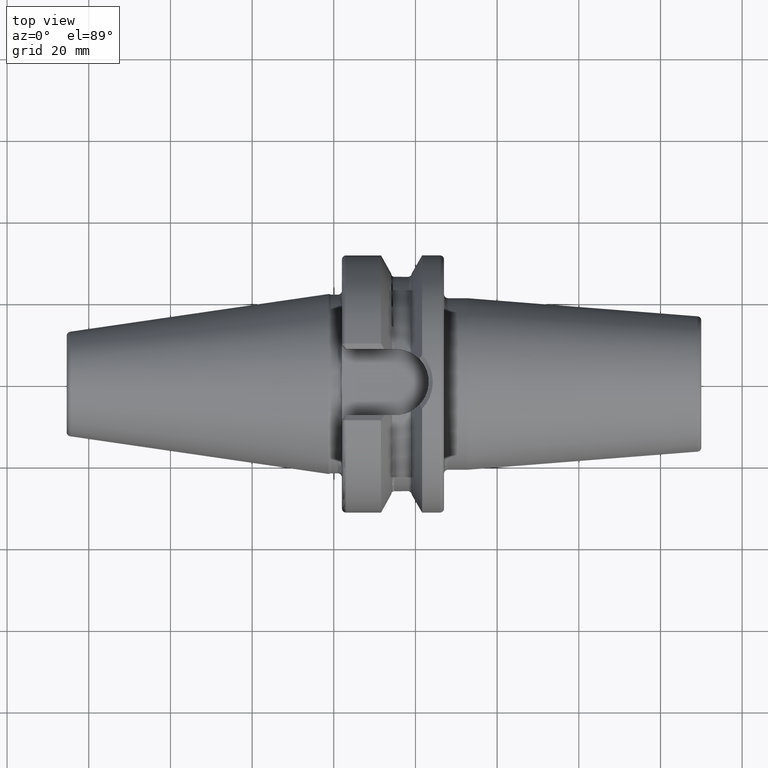
[diagram: clean part render]
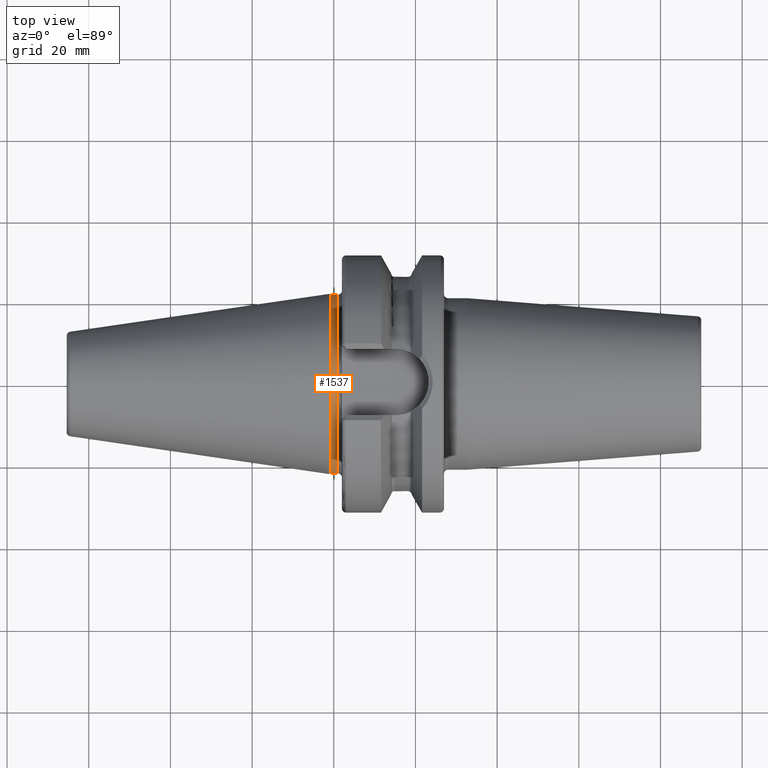
[diagram: same view with one face highlighted and labeled with its STEP entity id]
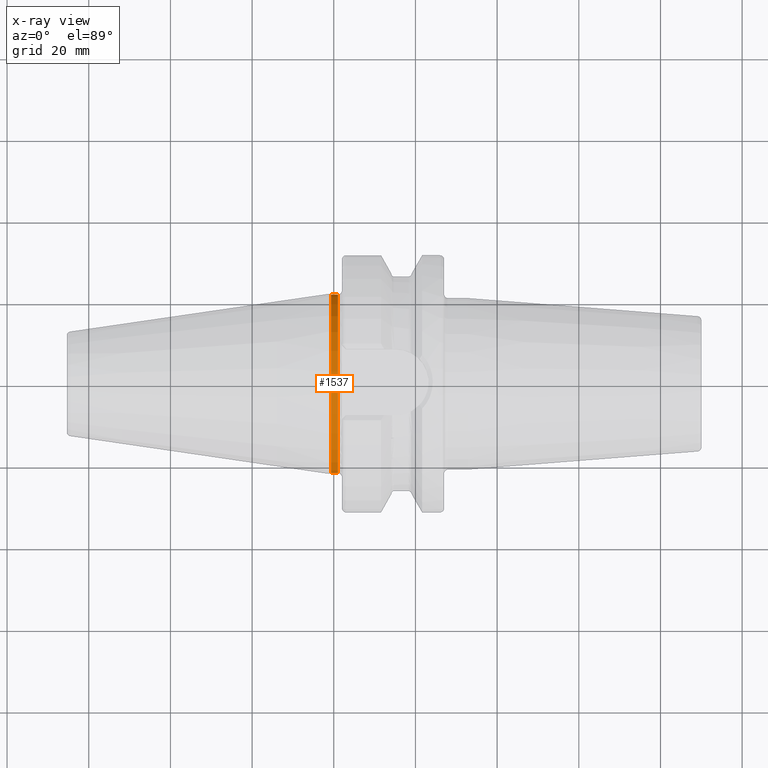
[diagram: x-ray of the same camera — body ghosted, the highlighted face saturated]
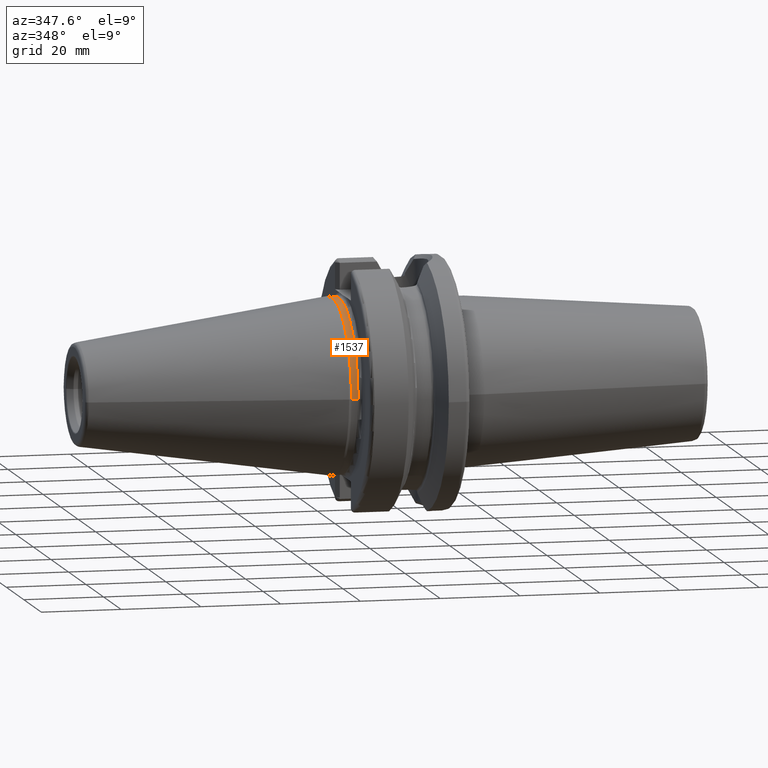
[diagram: same view with one face highlighted and labeled with its STEP entity id]
A machine part, top view. The second image highlights one B-rep face of the part: STEP entity #1537.
The next image is the same camera in x-ray: the body ghosted, the highlighted face saturated — about 0% of this face is hidden behind the body in this view.
A second angle (auxiliary view) of the same face is appended — the face is thin or edge-on in the first view.
In plain terms, the highlighted cylindrical surface (partial cylindrical patch) has radius 21.875 mm, axis along (1, 0, 0).
Its self-contained STEP definition (entity closure, byte-faithful):
#73=CARTESIAN_POINT('',(-6.5E-1,0.E0,0.E0));
#74=DIRECTION('',(1.E0,0.E0,0.E0));
#75=DIRECTION('',(0.E0,1.E0,0.E0));
#76=AXIS2_PLACEMENT_3D('',#73,#74,#75);
#78=CARTESIAN_POINT('',(1.E0,0.E0,0.E0));
#79=DIRECTION('',(1.E0,0.E0,0.E0));
#80=DIRECTION('',(0.E0,1.E0,0.E0));
#81=AXIS2_PLACEMENT_3D('',#78,#79,#80);
#83=DIRECTION('',(-1.E0,0.E0,0.E0));
#84=VECTOR('',#83,1.65E0);
#85=CARTESIAN_POINT('',(1.E0,2.1875E1,0.E0));
#86=LINE('',#85,#84);
#87=DIRECTION('',(-1.E0,0.E0,0.E0));
#88=VECTOR('',#87,1.65E0);
#89=CARTESIAN_POINT('',(1.E0,-2.1875E1,0.E0));
#90=LINE('',#89,#88);
#1243=CARTESIAN_POINT('',(1.E0,2.1875E1,0.E0));
#1245=VERTEX_POINT('',#1243);
#1246=CARTESIAN_POINT('',(-6.5E-1,2.1875E1,0.E0));
#1247=VERTEX_POINT('',#1246);
#1249=CARTESIAN_POINT('',(1.E0,-2.1875E1,0.E0));
#1251=VERTEX_POINT('',#1249);
#1252=CARTESIAN_POINT('',(-6.5E-1,-2.1875E1,0.E0));
#1253=VERTEX_POINT('',#1252);
#1523=CARTESIAN_POINT('',(-7.002E1,0.E0,0.E0));
#1524=DIRECTION('',(1.E0,0.E0,0.E0));
#1525=DIRECTION('',(0.E0,-1.E0,0.E0));
#1526=AXIS2_PLACEMENT_3D('',#1523,#1524,#1525);
#1527=CYLINDRICAL_SURFACE('',#1526,2.1875E1);
#1529=ORIENTED_EDGE('',*,*,#1528,.F.);
#1531=ORIENTED_EDGE('',*,*,#1530,.T.);
#1533=ORIENTED_EDGE('',*,*,#1532,.T.);
#1534=ORIENTED_EDGE('',*,*,#1516,.F.);
#1535=EDGE_LOOP('',(#1529,#1531,#1533,#1534));
#1536=FACE_OUTER_BOUND('',#1535,.F.);
#1537=ADVANCED_FACE('',(#1536),#1527,.T.);
#77=CIRCLE('',#76,2.1875E1);
#82=CIRCLE('',#81,2.1875E1);
#1516=EDGE_CURVE('',#1247,#1253,#77,.T.);
#1528=EDGE_CURVE('',#1245,#1247,#86,.T.);
#1530=EDGE_CURVE('',#1245,#1251,#82,.T.);
#1532=EDGE_CURVE('',#1251,#1253,#90,.T.);